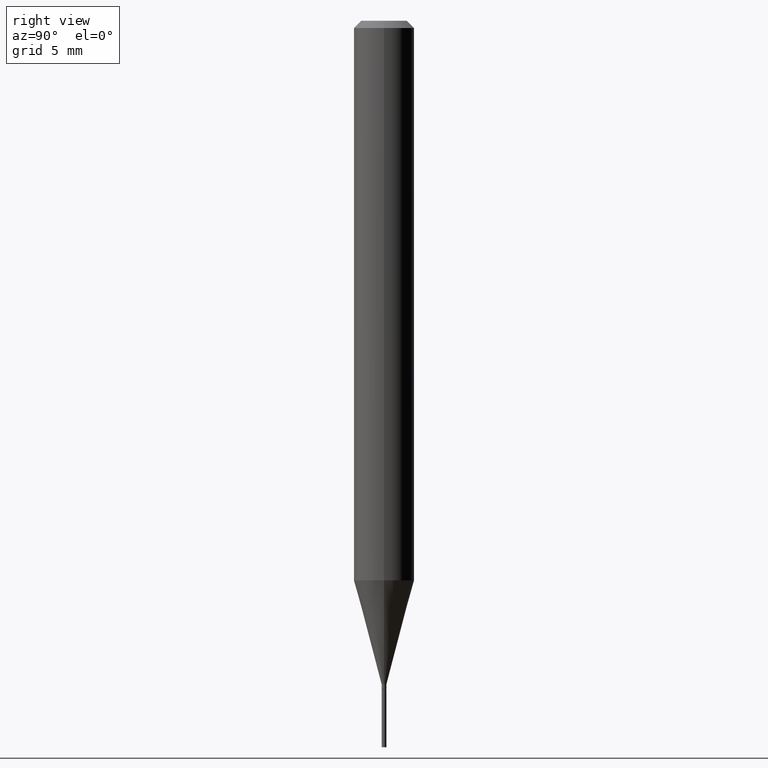
[diagram: clean part render]
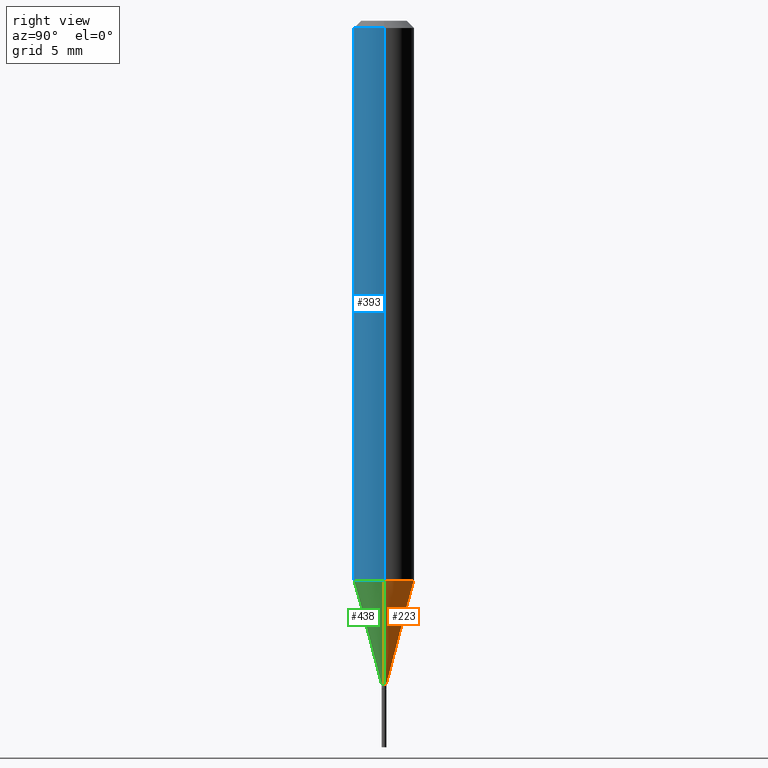
[diagram: same view with three faces highlighted in distinct colors, each labeled with its STEP entity id]
A machine part, right view with three faces highlighted in distinct colors.
Their STEP definitions:

[orange] entity #223 — the highlighted conical surface has half-angle 15 deg.
#10 = CIRCLE ( 'NONE', #70, 0.06250000000000000000 ) ;
#18 = CONICAL_SURFACE ( 'NONE', #217, 0.004999999999999938521, 0.2617993877991501850 ) ;
#43 = CARTESIAN_POINT ( 'NONE',  ( 2.825511969075693350E-29, -4.034082253576240820E-15, -1.155407078564790080 ) ) ;
#46 = DIRECTION ( 'NONE',  ( -2.445468806185136597E-29, 3.491481338843145583E-15, 1.000000000000000000 ) ) ;
#58 = CARTESIAN_POINT ( 'NONE',  ( 0.004999999999999938521, -4.818244247603540754E-15, -1.370000000000000107 ) ) ;
#63 = DIRECTION ( 'NONE',  ( 0.2588190451025214611, 1.565188264969620982E-15, 0.9659258262890679791 ) ) ;
#70 = AXIS2_PLACEMENT_3D ( 'NONE', #43, #46, #192 ) ;
#91 = LINE ( 'NONE', #58, #360 ) ;
#96 = CARTESIAN_POINT ( 'NONE',  ( 0.06250000000000000000, -4.470517420931631701E-15, -1.155407078564790080 ) ) ;
#98 = ORIENTED_EDGE ( 'NONE', *, *, #211, .F. ) ;
#151 = CARTESIAN_POINT ( 'NONE',  ( -0.004999999999999938521, -4.168897670576641529E-15, -1.370000000000000107 ) ) ;
#160 = EDGE_LOOP ( 'NONE', ( #266, #345, #270, #98 ) ) ;
#192 = DIRECTION ( 'NONE',  ( 1.000000000000000000, -6.982962677686270655E-15, 0.000000000000000000 ) ) ;
#193 = VERTEX_POINT ( 'NONE', #151 ) ;
#211 = EDGE_CURVE ( 'NONE', #447, #445, #91, .T. ) ;
#217 = AXIS2_PLACEMENT_3D ( 'NONE', #368, #303, #428 ) ;
#218 = VECTOR ( 'NONE', #455, 39.37007874015748143 ) ;
#223 = ADVANCED_FACE ( 'NONE', ( #226 ), #18, .T. ) ;
#226 = FACE_OUTER_BOUND ( 'NONE', #160, .T. ) ;
#266 = ORIENTED_EDGE ( 'NONE', *, *, #337, .T. ) ;
#268 = VERTEX_POINT ( 'NONE', #334 ) ;
#270 = ORIENTED_EDGE ( 'NONE', *, *, #344, .F. ) ;
#271 = LINE ( 'NONE', #310, #218 ) ;
#277 = CARTESIAN_POINT ( 'NONE',  ( 0.004999999999999938521, -4.818244247603540754E-15, -1.370000000000000107 ) ) ;
#303 = DIRECTION ( 'NONE',  ( -2.445468806185136597E-29, 3.491481338843145583E-15, 1.000000000000000000 ) ) ;
#310 = CARTESIAN_POINT ( 'NONE',  ( -0.004999999999999938521, -4.747802297427104853E-15, -1.370000000000000107 ) ) ;
#333 = DIRECTION ( 'NONE',  ( 1.000000000000000000, -6.982962677686224901E-15, 0.000000000000000000 ) ) ;
#334 = CARTESIAN_POINT ( 'NONE',  ( -0.06250000000000000000, -3.589993043726178204E-15, -1.155407078564790080 ) ) ;
#335 = DIRECTION ( 'NONE',  ( -2.445468806185136597E-29, 3.491481338843145583E-15, 1.000000000000000000 ) ) ;
#337 = EDGE_CURVE ( 'NONE', #447, #193, #348, .T. ) ;
#344 = EDGE_CURVE ( 'NONE', #445, #268, #10, .T. ) ;
#345 = ORIENTED_EDGE ( 'NONE', *, *, #423, .T. ) ;
#348 = CIRCLE ( 'NONE', #400, 0.004999999999999938521 ) ;
#360 = VECTOR ( 'NONE', #63, 39.37007874015748143 ) ;
#364 = CARTESIAN_POINT ( 'NONE',  ( 3.350292264473637048E-29, -4.783329434215109894E-15, -1.370000000000000107 ) ) ;
#368 = CARTESIAN_POINT ( 'NONE',  ( 3.350292264473637048E-29, -4.783329434215109894E-15, -1.370000000000000107 ) ) ;
#400 = AXIS2_PLACEMENT_3D ( 'NONE', #364, #335, #333 ) ;
#423 = EDGE_CURVE ( 'NONE', #193, #268, #271, .T. ) ;
#428 = DIRECTION ( 'NONE',  ( 1.000000000000000000, -6.982962677686224901E-15, 0.000000000000000000 ) ) ;
#445 = VERTEX_POINT ( 'NONE', #96 ) ;
#447 = VERTEX_POINT ( 'NONE', #277 ) ;
#455 = DIRECTION ( 'NONE',  ( -0.2588190451025214611, 5.211531920934550253E-15, 0.9659258262890679791 ) ) ;

[blue] entity #393 — the highlighted cylindrical surface (edge-blend (fillet) strip) has radius 1.5875 mm, axis along (-0, 0, 1).
#7 = CARTESIAN_POINT ( 'NONE',  ( 2.825511969075693350E-29, -4.034082253576240820E-15, -1.155407078564790080 ) ) ;
#13 = EDGE_LOOP ( 'NONE', ( #124, #84, #391, #304 ) ) ;
#69 = CARTESIAN_POINT ( 'NONE',  ( 0.06250000000000000000, -4.888073874380388472E-16, -0.01499999999999999944 ) ) ;
#74 = DIRECTION ( 'NONE',  ( -2.445468806185136597E-29, 3.491481338843145583E-15, 1.000000000000000000 ) ) ;
#76 = AXIS2_PLACEMENT_3D ( 'NONE', #155, #222, #189 ) ;
#84 = ORIENTED_EDGE ( 'NONE', *, *, #317, .T. ) ;
#87 = DIRECTION ( 'NONE',  ( 1.000000000000000000, -6.982962677686266711E-15, 4.876176775795935793E-29 ) ) ;
#96 = CARTESIAN_POINT ( 'NONE',  ( 0.06250000000000000000, -4.470517420931631701E-15, -1.155407078564790080 ) ) ;
#104 = CIRCLE ( 'NONE', #168, 0.06250000000000000000 ) ;
#124 = ORIENTED_EDGE ( 'NONE', *, *, #422, .F. ) ;
#130 = DIRECTION ( 'NONE',  ( -2.445468806185136877E-29, 3.491481338843145188E-15, 1.000000000000000000 ) ) ;
#148 = CARTESIAN_POINT ( 'NONE',  ( 0.06250000000000000000, -4.364351673553916694E-16, 3.047610484872459871E-30 ) ) ;
#155 = CARTESIAN_POINT ( 'NONE',  ( 3.668203209277705088E-31, -5.237222008264718399E-17, -0.01499999999999999944 ) ) ;
#163 = VERTEX_POINT ( 'NONE', #371 ) ;
#166 = CYLINDRICAL_SURFACE ( 'NONE', #332, 0.06250000000000000000 ) ;
#167 = CARTESIAN_POINT ( 'NONE',  ( 0.000000000000000000, 0.000000000000000000, 0.000000000000000000 ) ) ;
#168 = AXIS2_PLACEMENT_3D ( 'NONE', #7, #74, #370 ) ;
#189 = DIRECTION ( 'NONE',  ( 1.000000000000000000, -6.982962677686266711E-15, 0.000000000000000000 ) ) ;
#190 = EDGE_CURVE ( 'NONE', #445, #206, #363, .T. ) ;
#206 = VERTEX_POINT ( 'NONE', #69 ) ;
#222 = DIRECTION ( 'NONE',  ( -2.445468806185136597E-29, 3.491481338843145583E-15, 1.000000000000000000 ) ) ;
#236 = LINE ( 'NONE', #353, #286 ) ;
#268 = VERTEX_POINT ( 'NONE', #334 ) ;
#285 = CIRCLE ( 'NONE', #76, 0.06250000000000000000 ) ;
#286 = VECTOR ( 'NONE', #130, 39.37007874015748143 ) ;
#292 = DIRECTION ( 'NONE',  ( -2.445468806185136877E-29, 3.491481338843145188E-15, 1.000000000000000000 ) ) ;
#304 = ORIENTED_EDGE ( 'NONE', *, *, #336, .F. ) ;
#308 = DIRECTION ( 'NONE',  ( -2.445468806185136597E-29, 3.491481338843145583E-15, 1.000000000000000000 ) ) ;
#317 = EDGE_CURVE ( 'NONE', #268, #445, #104, .T. ) ;
#323 = VECTOR ( 'NONE', #292, 39.37007874015748143 ) ;
#332 = AXIS2_PLACEMENT_3D ( 'NONE', #167, #308, #87 ) ;
#334 = CARTESIAN_POINT ( 'NONE',  ( -0.06250000000000000000, -3.589993043726178204E-15, -1.155407078564790080 ) ) ;
#336 = EDGE_CURVE ( 'NONE', #163, #206, #285, .T. ) ;
#351 = FACE_OUTER_BOUND ( 'NONE', #13, .T. ) ;
#353 = CARTESIAN_POINT ( 'NONE',  ( -0.06250000000000000000, 4.440892098500626162E-16, -3.074334431409316114E-30 ) ) ;
#363 = LINE ( 'NONE', #148, #323 ) ;
#370 = DIRECTION ( 'NONE',  ( 1.000000000000000000, -6.982962677686270655E-15, 0.000000000000000000 ) ) ;
#371 = CARTESIAN_POINT ( 'NONE',  ( -0.06250000000000000000, -1.599138026979381531E-15, -0.01499999999999999944 ) ) ;
#391 = ORIENTED_EDGE ( 'NONE', *, *, #190, .T. ) ;
#393 = ADVANCED_FACE ( 'NONE', ( #351 ), #166, .T. ) ;
#422 = EDGE_CURVE ( 'NONE', #268, #163, #236, .T. ) ;
#445 = VERTEX_POINT ( 'NONE', #96 ) ;

[green] entity #438 — the highlighted conical surface has half-angle 15 deg.
#4 = AXIS2_PLACEMENT_3D ( 'NONE', #55, #138, #413 ) ;
#7 = CARTESIAN_POINT ( 'NONE',  ( 2.825511969075693350E-29, -4.034082253576240820E-15, -1.155407078564790080 ) ) ;
#16 = ORIENTED_EDGE ( 'NONE', *, *, #211, .T. ) ;
#50 = ORIENTED_EDGE ( 'NONE', *, *, #416, .T. ) ;
#55 = CARTESIAN_POINT ( 'NONE',  ( 3.350292264473637048E-29, -4.783329434215109894E-15, -1.370000000000000107 ) ) ;
#58 = CARTESIAN_POINT ( 'NONE',  ( 0.004999999999999938521, -4.818244247603540754E-15, -1.370000000000000107 ) ) ;
#60 = EDGE_LOOP ( 'NONE', ( #99, #50, #16, #378 ) ) ;
#63 = DIRECTION ( 'NONE',  ( 0.2588190451025214611, 1.565188264969620982E-15, 0.9659258262890679791 ) ) ;
#74 = DIRECTION ( 'NONE',  ( -2.445468806185136597E-29, 3.491481338843145583E-15, 1.000000000000000000 ) ) ;
#91 = LINE ( 'NONE', #58, #360 ) ;
#96 = CARTESIAN_POINT ( 'NONE',  ( 0.06250000000000000000, -4.470517420931631701E-15, -1.155407078564790080 ) ) ;
#99 = ORIENTED_EDGE ( 'NONE', *, *, #423, .F. ) ;
#104 = CIRCLE ( 'NONE', #168, 0.06250000000000000000 ) ;
#138 = DIRECTION ( 'NONE',  ( -2.445468806185136597E-29, 3.491481338843145583E-15, 1.000000000000000000 ) ) ;
#151 = CARTESIAN_POINT ( 'NONE',  ( -0.004999999999999938521, -4.168897670576641529E-15, -1.370000000000000107 ) ) ;
#168 = AXIS2_PLACEMENT_3D ( 'NONE', #7, #74, #370 ) ;
#175 = DIRECTION ( 'NONE',  ( -2.445468806185136597E-29, 3.491481338843145583E-15, 1.000000000000000000 ) ) ;
#177 = CIRCLE ( 'NONE', #324, 0.004999999999999938521 ) ;
#193 = VERTEX_POINT ( 'NONE', #151 ) ;
#203 = CARTESIAN_POINT ( 'NONE',  ( 3.350292264473637048E-29, -4.783329434215109894E-15, -1.370000000000000107 ) ) ;
#211 = EDGE_CURVE ( 'NONE', #447, #445, #91, .T. ) ;
#218 = VECTOR ( 'NONE', #455, 39.37007874015748143 ) ;
#268 = VERTEX_POINT ( 'NONE', #334 ) ;
#271 = LINE ( 'NONE', #310, #218 ) ;
#277 = CARTESIAN_POINT ( 'NONE',  ( 0.004999999999999938521, -4.818244247603540754E-15, -1.370000000000000107 ) ) ;
#280 = DIRECTION ( 'NONE',  ( 1.000000000000000000, -6.982962677686224901E-15, 0.000000000000000000 ) ) ;
#310 = CARTESIAN_POINT ( 'NONE',  ( -0.004999999999999938521, -4.747802297427104853E-15, -1.370000000000000107 ) ) ;
#313 = FACE_OUTER_BOUND ( 'NONE', #60, .T. ) ;
#317 = EDGE_CURVE ( 'NONE', #268, #445, #104, .T. ) ;
#324 = AXIS2_PLACEMENT_3D ( 'NONE', #203, #175, #280 ) ;
#334 = CARTESIAN_POINT ( 'NONE',  ( -0.06250000000000000000, -3.589993043726178204E-15, -1.155407078564790080 ) ) ;
#360 = VECTOR ( 'NONE', #63, 39.37007874015748143 ) ;
#370 = DIRECTION ( 'NONE',  ( 1.000000000000000000, -6.982962677686270655E-15, 0.000000000000000000 ) ) ;
#378 = ORIENTED_EDGE ( 'NONE', *, *, #317, .F. ) ;
#395 = CONICAL_SURFACE ( 'NONE', #4, 0.004999999999999938521, 0.2617993877991501850 ) ;
#413 = DIRECTION ( 'NONE',  ( 1.000000000000000000, -6.982962677686224901E-15, 0.000000000000000000 ) ) ;
#416 = EDGE_CURVE ( 'NONE', #193, #447, #177, .T. ) ;
#423 = EDGE_CURVE ( 'NONE', #193, #268, #271, .T. ) ;
#438 = ADVANCED_FACE ( 'NONE', ( #313 ), #395, .T. ) ;
#445 = VERTEX_POINT ( 'NONE', #96 ) ;
#447 = VERTEX_POINT ( 'NONE', #277 ) ;
#455 = DIRECTION ( 'NONE',  ( -0.2588190451025214611, 5.211531920934550253E-15, 0.9659258262890679791 ) ) ;